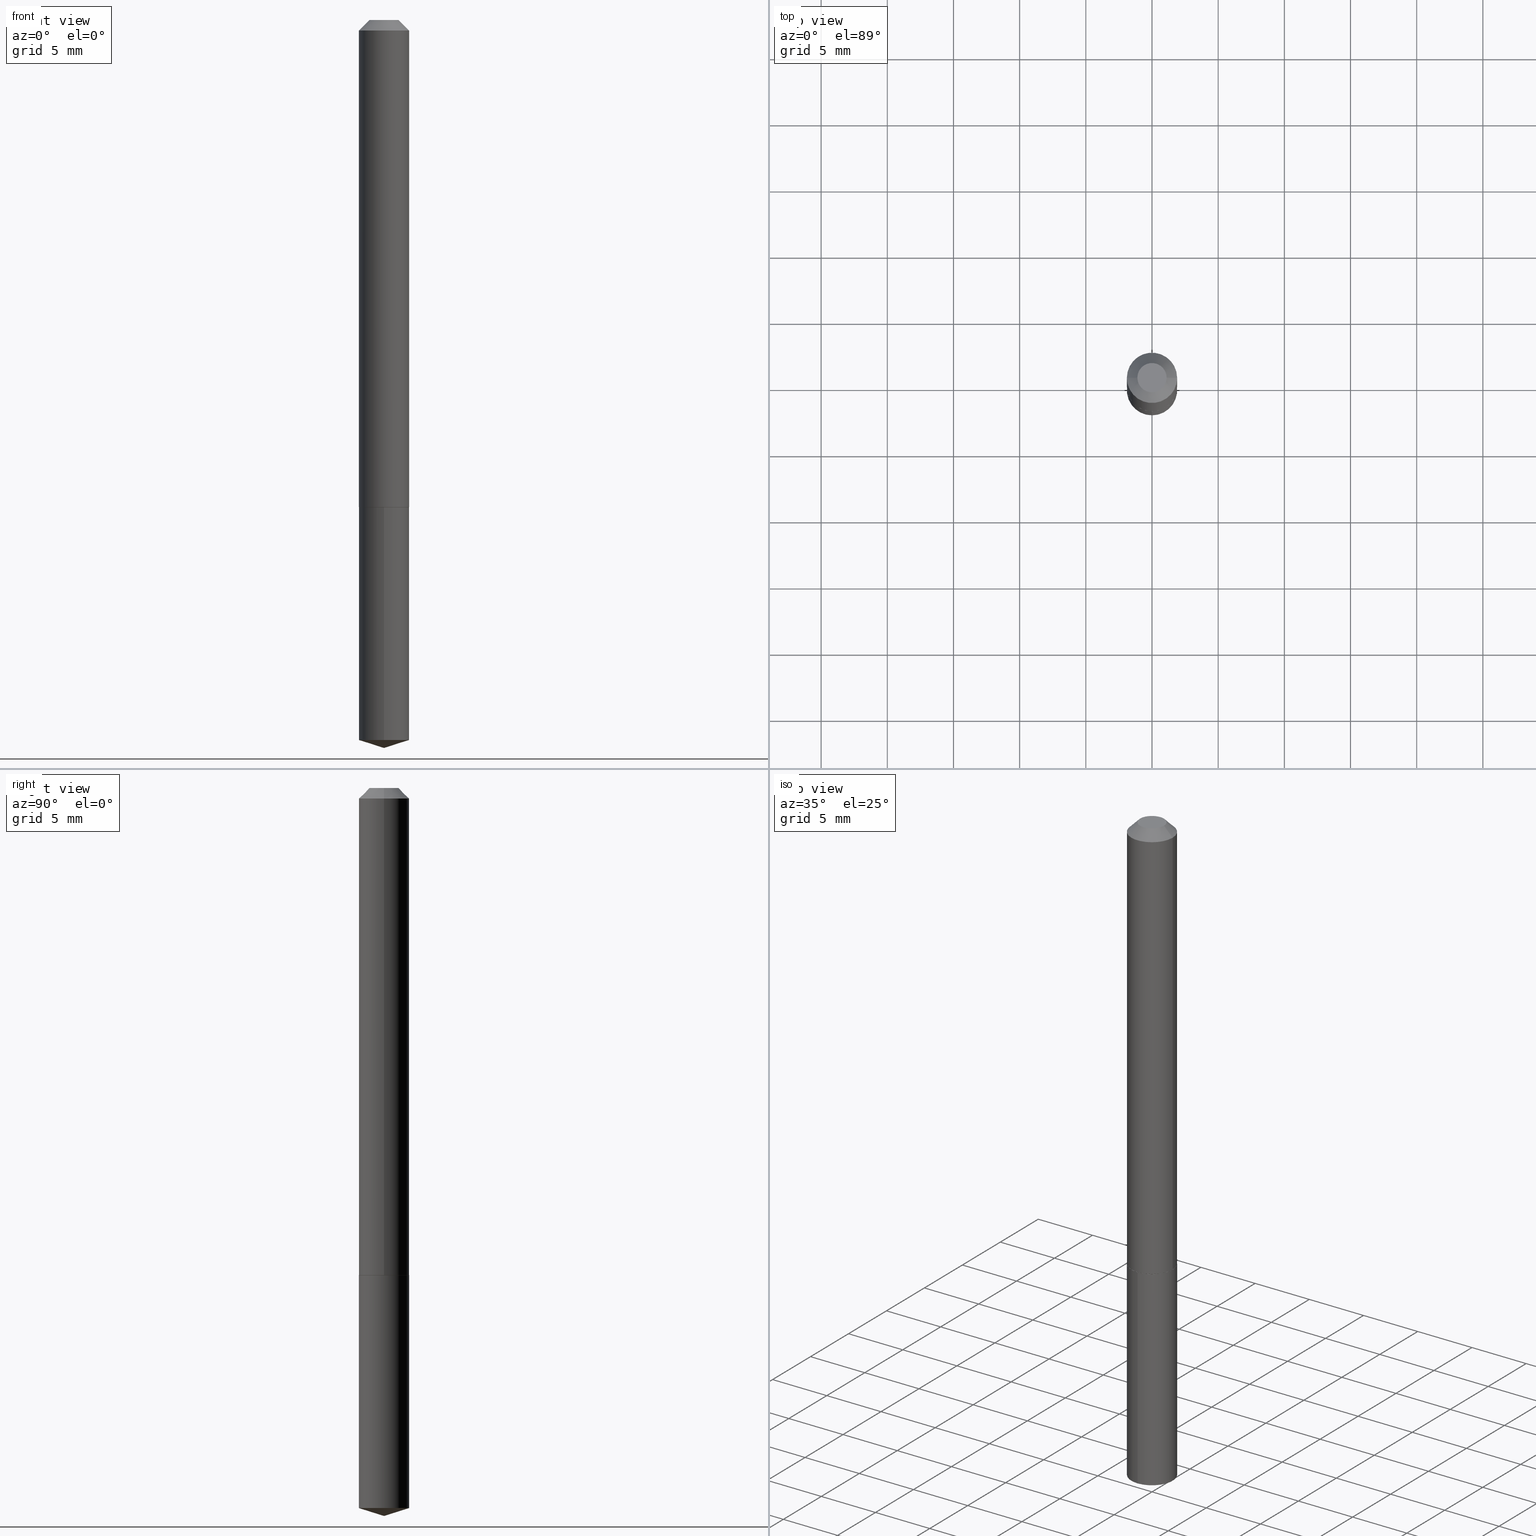
[diagram: canonical four-view strip — front | top / right | iso, engineering-drawing reading convention]
A machine part, canonical four-view strip (front | top / right | iso — engineering-drawing reading convention). The complete STEP part file that produces these views, byte-faithful:
ISO-10303-21;
HEADER;
FILE_DESCRIPTION (( 'STEP AP203' ),
    '1' );
FILE_NAME ('68686.STEP',
    '2024-04-23T13:36:39',
    ( '' ),
    ( '' ),
    'SwSTEP 2.0',
    'SolidWorks 2023',
    '' );
FILE_SCHEMA (( 'CONFIG_CONTROL_DESIGN' ));
ENDSEC;

DATA;
#1 = CIRCLE ( 'NONE', #275, 0.04355000000000000537 ) ;
#2 = CONICAL_SURFACE ( 'NONE', #114, 124.8659371009129160, 1.265363707695886797 ) ;
#3 = DIRECTION ( 'NONE',  ( -2.445414835624090141E-29, 3.491558627758377320E-15, 1.000000000000000000 ) ) ;
#4 = APPROVAL ( #79, 'UNSPECIFIED' ) ;
#5 = LENGTH_MEASURE_WITH_UNIT ( LENGTH_MEASURE( 0.02539999999999999897 ), #279 );
#6 = EDGE_CURVE ( 'NONE', #103, #8, #1, .T. ) ;
#7 = DIRECTION ( 'NONE',  ( 1.000000000000000000, -6.982962677686265922E-15, 4.876178871365119534E-29 ) ) ;
#8 = VERTEX_POINT ( 'NONE', #19 ) ;
#9 = CARTESIAN_POINT ( 'NONE',  ( 3.543239753281644463E-29, -5.058807311849834990E-15, -1.448900000000000299 ) ) ;
#10 = ORIENTED_EDGE ( 'NONE', *, *, #261, .T. ) ;
#11 = DATE_AND_TIME ( #378, #185 ) ;
#12 = CARTESIAN_POINT ( 'NONE',  ( 5.237705965075076905E-29, -7.478162929982624037E-15, -2.141815650591851750 ) ) ;
#13 = MECHANICAL_CONTEXT ( 'NONE', #85, 'mechanical' ) ;
#14 = ORIENTED_EDGE ( 'NONE', *, *, #48, .T. ) ;
#15 = EDGE_CURVE ( 'NONE', #43, #44, #188, .T. ) ;
#16 = ORIENTED_EDGE ( 'NONE', *, *, #22, .T. ) ;
#17 = DATE_TIME_ROLE ( 'creation_date' ) ;
#18 = PLANE ( 'NONE',  #357 ) ;
#19 = CARTESIAN_POINT ( 'NONE',  ( -0.04355000000000000537, 3.586624205326603821E-16, 2.388061258314161351E-19 ) ) ;
#20 = ORIENTED_EDGE ( 'NONE', *, *, #140, .F. ) ;
#21 = DIRECTION ( 'NONE',  ( -2.445468806185136597E-29, 3.491481338843145583E-15, 1.000000000000000000 ) ) ;
#22 = EDGE_CURVE ( 'NONE', #201, #25, #100, .T. ) ;
#23 = LINE ( 'NONE', #116, #184 ) ;
#24 = VECTOR ( 'NONE', #322, 39.37007874015748143 ) ;
#25 = VERTEX_POINT ( 'NONE', #49 ) ;
#26 = ORIENTED_EDGE ( 'NONE', *, *, #285, .F. ) ;
#27 = CARTESIAN_POINT ( 'NONE',  ( -9.098079514786339404E-28, 1.299024290320848208E-13, 37.20467874015748322 ) ) ;
#28 = CARTESIAN_POINT ( 'NONE',  ( -5.223256082908801440E-16, -0.07480000000000745775, -2.141815650591851750 ) ) ;
#29 = APPROVAL_PERSON_ORGANIZATION ( #232, #236, #76 ) ;
#30 = EDGE_LOOP ( 'NONE', ( #173, #70, #105 ) ) ;
#31 = DIRECTION ( 'NONE',  ( 6.776566513254246305E-15, 0.9537169507482272657, 0.3007057995042718423 ) ) ;
#32 = ADVANCED_FACE ( 'NONE', ( #170 ), #139, .F. ) ;
#33 = AXIS2_PLACEMENT_3D ( 'NONE', #257, #377, #355 ) ;
#34 = CONICAL_SURFACE ( 'NONE', #389, 124.8659371009129160, 1.265363707695886797 ) ;
#35 = DIRECTION ( 'NONE',  ( 1.000000000000000000, -6.982962677686261189E-15, 0.000000000000000000 ) ) ;
#36 = PRODUCT ( '68686', '68686', '', ( #13 ) ) ;
#37 = ORIENTED_EDGE ( 'NONE', *, *, #6, .F. ) ;
#38 = FACE_OUTER_BOUND ( 'NONE', #281, .T. ) ;
#39 = VERTEX_POINT ( 'NONE', #176 ) ;
#40 = CARTESIAN_POINT ( 'NONE',  ( 3.543239753281644463E-29, -5.058807311849834990E-15, -1.448900000000000299 ) ) ;
#41 = CLOSED_SHELL ( 'NONE', ( #122, #246, #180, #305, #296 ) ) ;
#42 = CIRCLE ( 'NONE', #108, 0.07430000000000049065 ) ;
#43 = VERTEX_POINT ( 'NONE', #28 ) ;
#44 = VERTEX_POINT ( 'NONE', #265 ) ;
#45 = PERSON_AND_ORGANIZATION ( #207, #299 ) ;
#46 = ORIENTED_EDGE ( 'NONE', *, *, #327, .T. ) ;
#47 = COORDINATED_UNIVERSAL_TIME_OFFSET ( 5, 0, .BEHIND. ) ;
#48 = EDGE_CURVE ( 'NONE', #101, #201, #266, .T. ) ;
#49 = CARTESIAN_POINT ( 'NONE',  ( -0.07480000000000000537, -2.051599215161074541E-15, -0.03125000000000020123 ) ) ;
#50 = DATE_AND_TIME ( #71, #74 ) ;
#51 = AXIS2_PLACEMENT_3D ( 'NONE', #87, #237, #211 ) ;
#52 = ORIENTED_EDGE ( 'NONE', *, *, #384, .T. ) ;
#53 = ORIENTED_EDGE ( 'NONE', *, *, #240, .F. ) ;
#54 = PERSON_AND_ORGANIZATION_ROLE ( 'creator' ) ;
#55 = DIRECTION ( 'NONE',  ( -6.982962677686265922E-15, -1.000000000000000000, 3.652203200085913934E-15 ) ) ;
#56 = DIRECTION ( 'NONE',  ( -2.445468806185136597E-29, 3.491481338843145583E-15, 1.000000000000000000 ) ) ;
#57 = DIRECTION ( 'NONE',  ( -6.982962677686265922E-15, -1.000000000000000000, 3.652203200085913934E-15 ) ) ;
#58 =( GEOMETRIC_REPRESENTATION_CONTEXT ( 3 ) GLOBAL_UNCERTAINTY_ASSIGNED_CONTEXT ( ( #335 ) ) GLOBAL_UNIT_ASSIGNED_CONTEXT ( ( #130, #369, #158 ) ) REPRESENTATION_CONTEXT ( 'NONE', 'WORKASPACE' ) );
#59 = DIRECTION ( 'NONE',  ( 1.000000000000000000, -6.982962677686266711E-15, 0.000000000000000000 ) ) ;
#60 = EDGE_CURVE ( 'NONE', #251, #375, #23, .T. ) ;
#61 = DIRECTION ( 'NONE',  ( -2.445414835624090421E-29, 3.491558627758377320E-15, 1.000000000000000000 ) ) ;
#62 = AXIS2_PLACEMENT_3D ( 'NONE', #84, #61, #55 ) ;
#63 = CARTESIAN_POINT ( 'NONE',  ( 0.07480000000000000537, -6.314344001297818025E-16, -0.03125000000000020123 ) ) ;
#64 = CARTESIAN_POINT ( 'NONE',  ( 5.314859663485902787E-16, 0.07479999999999492610, -1.448900000000000521 ) ) ;
#65 = AXIS2_PLACEMENT_3D ( 'NONE', #183, #21, #206 ) ;
#66 = DIRECTION ( 'NONE',  ( -6.982962677686265922E-15, -1.000000000000000000, 3.652203200085913145E-15 ) ) ;
#67 = CARTESIAN_POINT ( 'NONE',  ( 3.543239753281644463E-29, -5.058807311849834990E-15, -1.448900000000000299 ) ) ;
#68 = ORIENTED_EDGE ( 'NONE', *, *, #48, .F. ) ;
#69 = DIRECTION ( 'NONE',  ( 0.000000000000000000, 0.000000000000000000, 1.000000000000000000 ) ) ;
#70 = ORIENTED_EDGE ( 'NONE', *, *, #334, .T. ) ;
#71 = CALENDAR_DATE ( 2024, 23, 4 ) ;
#72 = AXIS2_PLACEMENT_3D ( 'NONE', #96, #282, #190 ) ;
#73 = CIRCLE ( 'NONE', #247, 0.07480000000000000537 ) ;
#74 = LOCAL_TIME ( 9, 36, 39.00000000000000000, #199 ) ;
#75 = EDGE_LOOP ( 'NONE', ( #197, #52, #311, #372 ) ) ;
#76 = APPROVAL_ROLE ( '' ) ;
#77 = ADVANCED_BREP_SHAPE_REPRESENTATION ( '68686', ( #387, #118, #203 ), #58 ) ;
#78 = ORIENTED_EDGE ( 'NONE', *, *, #318, .F. ) ;
#79 = APPROVAL_STATUS ( 'not_yet_approved' ) ;
#80 = CC_DESIGN_PERSON_AND_ORGANIZATION_ASSIGNMENT ( #45, #230, ( #154 ) ) ;
#81 = ORIENTED_EDGE ( 'NONE', *, *, #93, .F. ) ;
#82 = PERSON_AND_ORGANIZATION ( #207, #299 ) ;
#83 = VECTOR ( 'NONE', #155, 39.37007874015748143 ) ;
#84 = CARTESIAN_POINT ( 'NONE',  ( 3.543239753281644463E-29, -5.058807311849834990E-15, -1.448900000000000299 ) ) ;
#85 = APPLICATION_CONTEXT ( 'configuration controlled 3d designs of mechanical parts and assemblies' ) ;
#86 = DIRECTION ( 'NONE',  ( -1.000000000000000000, 6.982962677686266711E-15, 0.000000000000000000 ) ) ;
#87 = CARTESIAN_POINT ( 'NONE',  ( 7.642090019328601786E-31, -1.091087918388490144E-16, -0.03125000000000020123 ) ) ;
#88 = AXIS2_PLACEMENT_3D ( 'NONE', #332, #129, #35 ) ;
#89 = CARTESIAN_POINT ( 'NONE',  ( 7.642090019328601786E-31, -1.091087918388490144E-16, -0.03125000000000020123 ) ) ;
#90 = DIRECTION ( 'NONE',  ( 6.982962677686265922E-15, 1.000000000000000000, -3.491558627758377320E-15 ) ) ;
#91 = DIRECTION ( 'NONE',  ( 0.7071067811864026886, -2.468850131080739687E-15, 0.7071067811866923458 ) ) ;
#92 = CC_DESIGN_PERSON_AND_ORGANIZATION_ASSIGNMENT ( #107, #290, ( #154 ) ) ;
#93 = EDGE_CURVE ( 'NONE', #375, #201, #304, .T. ) ;
#94 = CONICAL_SURFACE ( 'NONE', #72, 0.07480000000000018578, 0.7853981633972434429 ) ;
#95 = CYLINDRICAL_SURFACE ( 'NONE', #383, 0.07480000000000010252 ) ;
#96 = CARTESIAN_POINT ( 'NONE',  ( 3.542017018878552782E-29, -5.057061571180413486E-15, -1.448400000000000354 ) ) ;
#97 = AXIS2_PLACEMENT_3D ( 'NONE', #386, #56, #380 ) ;
#98 = CARTESIAN_POINT ( 'NONE',  ( 0.000000000000000000, 0.000000000000000000, 0.000000000000000000 ) ) ;
#99 = CC_DESIGN_PERSON_AND_ORGANIZATION_ASSIGNMENT ( #349, #381, ( #196 ) ) ;
#100 = LINE ( 'NONE', #109, #209 ) ;
#101 = VERTEX_POINT ( 'NONE', #178 ) ;
#102 = DESIGN_CONTEXT ( 'detailed design', #272, 'design' ) ;
#103 = VERTEX_POINT ( 'NONE', #147 ) ;
#104 = DIRECTION ( 'NONE',  ( 1.000000000000000000, -6.982962677686265922E-15, 4.876176775795935232E-29 ) ) ;
#105 = ORIENTED_EDGE ( 'NONE', *, *, #15, .F. ) ;
#106 = EDGE_CURVE ( 'NONE', #345, #43, #293, .T. ) ;
#107 = PERSON_AND_ORGANIZATION ( #207, #299 ) ;
#108 = AXIS2_PLACEMENT_3D ( 'NONE', #9, #160, #134 ) ;
#109 = CARTESIAN_POINT ( 'NONE',  ( -0.07480000000000010252, 5.314859663485556675E-16, -3.679363447510674285E-30 ) ) ;
#110 = PERSON_AND_ORGANIZATION_ROLE ( 'design_owner' ) ;
#111 = ORIENTED_EDGE ( 'NONE', *, *, #285, .T. ) ;
#112 = APPROVAL_DATE_TIME ( #11, #330 ) ;
#113 = CARTESIAN_POINT ( 'NONE',  ( 3.543239753281644463E-29, -5.058807311849834990E-15, -1.448900000000000299 ) ) ;
#114 = AXIS2_PLACEMENT_3D ( 'NONE', #27, #149, #268 ) ;
#115 = CC_DESIGN_SECURITY_CLASSIFICATION ( #196, ( #154 ) ) ;
#116 = CARTESIAN_POINT ( 'NONE',  ( 0.07480000000000018578, -5.579387179471347865E-15, -1.448400000000000354 ) ) ;
#117 = DIRECTION ( 'NONE',  ( -0.7071067811864026886, 7.493145998869830357E-15, 0.7071067811866923458 ) ) ;
#118 = MANIFOLD_SOLID_BREP ( 'Body-Move/Copy2[2]', #179 ) ;
#119 = DIMENSIONAL_EXPONENTS ( 1.000000000000000000, 0.000000000000000000, 0.000000000000000000, 0.000000000000000000, 0.000000000000000000, 0.000000000000000000, 0.000000000000000000 ) ;
#120 = CARTESIAN_POINT ( 'NONE',  ( 0.07480000000000000537, -6.222740420721597243E-16, -0.03125000000000020123 ) ) ;
#121 = FACE_OUTER_BOUND ( 'NONE', #325, .T. ) ;
#122 = ADVANCED_FACE ( 'NONE', ( #146 ), #262, .T. ) ;
#123 = CIRCLE ( 'NONE', #264, 0.07479999999999999150 ) ;
#124 = LOCAL_TIME ( 9, 36, 39.00000000000000000, #312 ) ;
#125 = PLANE ( 'NONE',  #294 ) ;
#126 = ORIENTED_EDGE ( 'NONE', *, *, #390, .T. ) ;
#127 = CARTESIAN_POINT ( 'NONE',  ( -0.07480000000000000537, 4.132168164520837984E-16, -0.03125000000000020123 ) ) ;
#128 = EDGE_CURVE ( 'NONE', #103, #337, #235, .T. ) ;
#129 = DIRECTION ( 'NONE',  ( -2.445468806185136597E-29, 3.491481338843145583E-15, 1.000000000000000000 ) ) ;
#130 =( CONVERSION_BASED_UNIT ( 'INCH', #5 ) LENGTH_UNIT ( ) NAMED_UNIT ( #119 ) );
#131 = APPROVAL_PERSON_ORGANIZATION ( #171, #330, #137 ) ;
#132 = CYLINDRICAL_SURFACE ( 'NONE', #309, 0.07480000000000010252 ) ;
#133 = EDGE_LOOP ( 'NONE', ( #200, #165, #111, #307 ) ) ;
#134 = DIRECTION ( 'NONE',  ( 1.000000000000000000, -6.982962677686261189E-15, 0.000000000000000000 ) ) ;
#135 = ADVANCED_FACE ( 'NONE', ( #292 ), #150, .T. ) ;
#136 = ORIENTED_EDGE ( 'NONE', *, *, #242, .F. ) ;
#137 = APPROVAL_ROLE ( '' ) ;
#138 = VECTOR ( 'NONE', #3, 39.37007874015748143 ) ;
#139 = PLANE ( 'NONE',  #33 ) ;
#140 = EDGE_CURVE ( 'NONE', #25, #337, #172, .T. ) ;
#141 = DATE_AND_TIME ( #256, #358 ) ;
#142 = DIRECTION ( 'NONE',  ( -2.445414835624090421E-29, 3.491558627758377320E-15, 1.000000000000000000 ) ) ;
#143 = ORIENTED_EDGE ( 'NONE', *, *, #390, .F. ) ;
#144 = DIRECTION ( 'NONE',  ( -2.445414835624090421E-29, 3.491558627758377320E-15, 1.000000000000000000 ) ) ;
#145 = AXIS2_PLACEMENT_3D ( 'NONE', #210, #328, #59 ) ;
#146 = FACE_OUTER_BOUND ( 'NONE', #75, .T. ) ;
#147 = CARTESIAN_POINT ( 'NONE',  ( 0.04355000000000000537, -4.605243649375549933E-16, 2.388061258364063159E-19 ) ) ;
#148 = DIRECTION ( 'NONE',  ( 2.445414835624090141E-29, -3.491558627758377320E-15, -1.000000000000000000 ) ) ;
#149 = DIRECTION ( 'NONE',  ( -2.445414835624090421E-29, 3.491558627758377320E-15, 1.000000000000000000 ) ) ;
#150 = CONICAL_SURFACE ( 'NONE', #51, 0.07480000000000000537, 0.7853981633974452814 ) ;
#151 = DIRECTION ( 'NONE',  ( -2.445468806185136597E-29, 3.491481338843145583E-15, 1.000000000000000000 ) ) ;
#152 = LINE ( 'NONE', #216, #329 ) ;
#153 = CONICAL_SURFACE ( 'NONE', #202, 0.07480000000000000537, 0.7853981633974452814 ) ;
#154 = PRODUCT_DEFINITION_FORMATION_WITH_SPECIFIED_SOURCE ( 'ANY', '', #36, .NOT_KNOWN. ) ;
#155 = DIRECTION ( 'NONE',  ( -2.445414835624090141E-29, 3.491558627758377320E-15, 1.000000000000000000 ) ) ;
#156 = LINE ( 'NONE', #127, #374 ) ;
#157 = EDGE_CURVE ( 'NONE', #201, #375, #320, .T. ) ;
#158 =( NAMED_UNIT ( * ) SI_UNIT ( $, .STERADIAN. ) SOLID_ANGLE_UNIT ( ) );
#159 = CC_DESIGN_PERSON_AND_ORGANIZATION_ASSIGNMENT ( #169, #54, ( #302 ) ) ;
#160 = DIRECTION ( 'NONE',  ( -2.445468806185136597E-29, 3.491481338843145583E-15, 1.000000000000000000 ) ) ;
#161 = ORIENTED_EDGE ( 'NONE', *, *, #60, .T. ) ;
#162 = AXIS2_PLACEMENT_3D ( 'NONE', #40, #163, #187 ) ;
#163 = DIRECTION ( 'NONE',  ( -2.445414835624090421E-29, 3.491558627758377320E-15, 1.000000000000000000 ) ) ;
#164 = CC_DESIGN_APPROVAL ( #330, ( #302 ) ) ;
#165 = ORIENTED_EDGE ( 'NONE', *, *, #261, .F. ) ;
#166 = ORIENTED_EDGE ( 'NONE', *, *, #157, .F. ) ;
#167 = SHAPE_DEFINITION_REPRESENTATION ( #224, #77 ) ;
#168 = ORIENTED_EDGE ( 'NONE', *, *, #60, .F. ) ;
#169 = PERSON_AND_ORGANIZATION ( #207, #299 ) ;
#170 = FACE_OUTER_BOUND ( 'NONE', #316, .T. ) ;
#171 = PERSON_AND_ORGANIZATION ( #207, #299 ) ;
#172 = CIRCLE ( 'NONE', #65, 0.07480000000000000537 ) ;
#173 = ORIENTED_EDGE ( 'NONE', *, *, #106, .F. ) ;
#174 = ORIENTED_EDGE ( 'NONE', *, *, #240, .T. ) ;
#175 = APPROVAL_ROLE ( '' ) ;
#176 = CARTESIAN_POINT ( 'NONE',  ( -5.223256082908973017E-16, -0.07480000000000507077, -1.448899999999999855 ) ) ;
#177 = DATE_TIME_ROLE ( 'classification_date' ) ;
#178 = CARTESIAN_POINT ( 'NONE',  ( -0.07430000000000049065, -4.528224832005967541E-15, -1.448900000000000299 ) ) ;
#179 = CLOSED_SHELL ( 'NONE', ( #229, #269, #379, #32, #255, #361, #135, #300 ) ) ;
#180 = ADVANCED_FACE ( 'NONE', ( #350 ), #34, .T. ) ;
#181 = DIRECTION ( 'NONE',  ( 1.000000000000000000, -6.982962677686271444E-15, 0.000000000000000000 ) ) ;
#182 = FACE_OUTER_BOUND ( 'NONE', #30, .T. ) ;
#183 = CARTESIAN_POINT ( 'NONE',  ( 7.642090019328601786E-31, -1.091087918388490144E-16, -0.03125000000000020123 ) ) ;
#184 = VECTOR ( 'NONE', #91, 39.37007874015748143 ) ;
#185 = LOCAL_TIME ( 9, 36, 39.00000000000000000, #317 ) ;
#186 = CARTESIAN_POINT ( 'NONE',  ( 5.295301285060405433E-29, -7.560621052547990734E-15, -2.165399999999999991 ) ) ;
#187 = DIRECTION ( 'NONE',  ( -6.982962677686265922E-15, -1.000000000000000000, 3.652203200085913934E-15 ) ) ;
#188 = CIRCLE ( 'NONE', #373, 0.07479999999999999150 ) ;
#189 = LINE ( 'NONE', #64, #138 ) ;
#190 = DIRECTION ( 'NONE',  ( 1.000000000000000000, -6.982962677686271444E-15, 0.000000000000000000 ) ) ;
#191 = FACE_OUTER_BOUND ( 'NONE', #225, .T. ) ;
#192 = ORIENTED_EDGE ( 'NONE', *, *, #384, .F. ) ;
#193 = DIRECTION ( 'NONE',  ( -1.000000000000000000, 6.982962677686265922E-15, -4.876176775795935793E-29 ) ) ;
#194 = CARTESIAN_POINT ( 'NONE',  ( -5.839929314523175409E-48, 8.337871319499082469E-34, 2.388061258337334140E-19 ) ) ;
#195 = VECTOR ( 'NONE', #204, 39.37007874015748854 ) ;
#196 = SECURITY_CLASSIFICATION ( '', '', #287 ) ;
#197 = ORIENTED_EDGE ( 'NONE', *, *, #15, .T. ) ;
#198 = EDGE_LOOP ( 'NONE', ( #37, #348, #267, #26 ) ) ;
#199 = COORDINATED_UNIVERSAL_TIME_OFFSET ( 5, 0, .BEHIND. ) ;
#200 = ORIENTED_EDGE ( 'NONE', *, *, #128, .F. ) ;
#201 = VERTEX_POINT ( 'NONE', #297 ) ;
#202 = AXIS2_PLACEMENT_3D ( 'NONE', #89, #231, #86 ) ;
#203 = AXIS2_PLACEMENT_3D ( 'NONE', #220, #69, #205 ) ;
#204 = DIRECTION ( 'NONE',  ( -6.659769872151621044E-15, -0.9537169507482251563, 0.3007057995042784482 ) ) ;
#205 = DIRECTION ( 'NONE',  ( 1.000000000000000000, 0.000000000000000000, 0.000000000000000000 ) ) ;
#206 = DIRECTION ( 'NONE',  ( 1.000000000000000000, -6.982962677686266711E-15, 0.000000000000000000 ) ) ;
#207 = PERSON ( 'UNSPECIFIED', 'UNSPECIFIED', 'UNSPECIFIED', ('UNSPECIFIED'), ('UNSPECIFIED'), ('UNSPECIFIED') ) ;
#208 = FACE_OUTER_BOUND ( 'NONE', #198, .T. ) ;
#209 = VECTOR ( 'NONE', #219, 39.37007874015748143 ) ;
#210 = CARTESIAN_POINT ( 'NONE',  ( 7.642090019328601786E-31, -1.091087918388490144E-16, -0.03125000000000020123 ) ) ;
#211 = DIRECTION ( 'NONE',  ( -1.000000000000000000, 6.982962677686266711E-15, 0.000000000000000000 ) ) ;
#212 = CARTESIAN_POINT ( 'NONE',  ( 0.07480000000000010252, -5.223256082909333921E-16, 3.647380228295364368E-30 ) ) ;
#213 = CIRCLE ( 'NONE', #88, 0.07430000000000049065 ) ;
#214 = CARTESIAN_POINT ( 'NONE',  ( 0.07480000000000018578, -5.579387179471347865E-15, -1.448400000000000354 ) ) ;
#215 = FACE_OUTER_BOUND ( 'NONE', #319, .T. ) ;
#216 = CARTESIAN_POINT ( 'NONE',  ( 5.295459052359565320E-29, -7.560397084729431831E-15, -2.165399999999999991 ) ) ;
#217 = DIRECTION ( 'NONE',  ( -2.445468806185136597E-29, 3.491481338843145583E-15, 1.000000000000000000 ) ) ;
#218 = EDGE_CURVE ( 'NONE', #368, #39, #233, .T. ) ;
#219 = DIRECTION ( 'NONE',  ( -2.445468806185136877E-29, 3.491481338843145188E-15, 1.000000000000000000 ) ) ;
#220 = CARTESIAN_POINT ( 'NONE',  ( 0.000000000000000000, 0.000000000000000000, 0.000000000000000000 ) ) ;
#221 = CARTESIAN_POINT ( 'NONE',  ( 0.000000000000000000, 0.000000000000000000, 0.000000000000000000 ) ) ;
#222 = ORIENTED_EDGE ( 'NONE', *, *, #334, .F. ) ;
#223 = EDGE_LOOP ( 'NONE', ( #222, #284, #53 ) ) ;
#224 = PRODUCT_DEFINITION_SHAPE ( 'NONE', 'NONE',  #302 ) ;
#225 = EDGE_LOOP ( 'NONE', ( #286, #16, #136, #343 ) ) ;
#226 = APPROVAL_STATUS ( 'not_yet_approved' ) ;
#227 = ORIENTED_EDGE ( 'NONE', *, *, #218, .T. ) ;
#228 = APPROVAL_DATE_TIME ( #141, #236 ) ;
#229 = ADVANCED_FACE ( 'NONE', ( #208 ), #153, .T. ) ;
#230 = PERSON_AND_ORGANIZATION_ROLE ( 'design_supplier' ) ;
#231 = DIRECTION ( 'NONE',  ( 2.445468806185136597E-29, -3.491481338843145583E-15, -1.000000000000000000 ) ) ;
#232 = PERSON_AND_ORGANIZATION ( #207, #299 ) ;
#233 = CIRCLE ( 'NONE', #238, 0.07480000000000000537 ) ;
#234 = DIRECTION ( 'NONE',  ( -6.982962677686265922E-15, -1.000000000000000000, 3.652203200085913145E-15 ) ) ;
#235 = LINE ( 'NONE', #120, #24 ) ;
#236 = APPROVAL ( #226, 'UNSPECIFIED' ) ;
#237 = DIRECTION ( 'NONE',  ( 2.445468806185136597E-29, -3.491481338843145583E-15, -1.000000000000000000 ) ) ;
#238 = AXIS2_PLACEMENT_3D ( 'NONE', #113, #382, #234 ) ;
#239 = CARTESIAN_POINT ( 'NONE',  ( 3.542017018878552782E-29, -5.057061571180413486E-15, -1.448400000000000354 ) ) ;
#240 = EDGE_CURVE ( 'NONE', #44, #43, #123, .T. ) ;
#241 = AXIS2_PLACEMENT_3D ( 'NONE', #363, #217, #7 ) ;
#242 = EDGE_CURVE ( 'NONE', #337, #25, #289, .T. ) ;
#243 = CC_DESIGN_APPROVAL ( #236, ( #154 ) ) ;
#244 = CARTESIAN_POINT ( 'NONE',  ( -2.919964657261587705E-48, 4.168935659749541235E-34, 1.194030629168667070E-19 ) ) ;
#245 = CARTESIAN_POINT ( 'NONE',  ( -5.223256082908972031E-16, -0.07480000000000505689, -1.448899999999999855 ) ) ;
#246 = ADVANCED_FACE ( 'NONE', ( #182 ), #2, .T. ) ;
#247 = AXIS2_PLACEMENT_3D ( 'NONE', #67, #360, #66 ) ;
#248 = LOCAL_TIME ( 9, 36, 39.00000000000000000, #47 ) ;
#249 = ORIENTED_EDGE ( 'NONE', *, *, #274, .T. ) ;
#250 = DIRECTION ( 'NONE',  ( 1.000000000000000000, -6.982962677686271444E-15, 0.000000000000000000 ) ) ;
#251 = VERTEX_POINT ( 'NONE', #388 ) ;
#252 = ORIENTED_EDGE ( 'NONE', *, *, #318, .T. ) ;
#253 = APPLICATION_PROTOCOL_DEFINITION ( 'international standard', 'config_control_design', 1994, #272 ) ;
#254 = DIRECTION ( 'NONE',  ( -6.982962677686265922E-15, -1.000000000000000000, 3.652203200085913934E-15 ) ) ;
#255 = ADVANCED_FACE ( 'NONE', ( #121 ), #276, .T. ) ;
#256 = CALENDAR_DATE ( 2024, 23, 4 ) ;
#257 = CARTESIAN_POINT ( 'NONE',  ( 3.543239753281644463E-29, -5.058807311849834990E-15, -1.448900000000000299 ) ) ;
#258 = CALENDAR_DATE ( 2024, 23, 4 ) ;
#259 = ORIENTED_EDGE ( 'NONE', *, *, #6, .T. ) ;
#260 = FACE_OUTER_BOUND ( 'NONE', #313, .T. ) ;
#261 = EDGE_CURVE ( 'NONE', #8, #103, #270, .T. ) ;
#262 = CYLINDRICAL_SURFACE ( 'NONE', #62, 0.07479999999999999150 ) ;
#263 = APPROVAL_DATE_TIME ( #50, #4 ) ;
#264 = AXIS2_PLACEMENT_3D ( 'NONE', #324, #326, #57 ) ;
#265 = CARTESIAN_POINT ( 'NONE',  ( 5.314859663486070420E-16, 0.07479999999999249749, -2.141815650591852194 ) ) ;
#266 = LINE ( 'NONE', #385, #342 ) ;
#267 = ORIENTED_EDGE ( 'NONE', *, *, #242, .T. ) ;
#268 = DIRECTION ( 'NONE',  ( -6.982962677686268288E-15, -1.000000000000000000, 3.500519750498764780E-15 ) ) ;
#269 = ADVANCED_FACE ( 'NONE', ( #191 ), #132, .T. ) ;
#270 = CIRCLE ( 'NONE', #241, 0.04355000000000000537 ) ;
#271 = CC_DESIGN_DATE_AND_TIME_ASSIGNMENT ( #353, #177, ( #196 ) ) ;
#272 = APPLICATION_CONTEXT ( 'configuration controlled 3d designs of mechanical parts and assemblies' ) ;
#273 = CARTESIAN_POINT ( 'NONE',  ( 3.543239753281644463E-29, -5.058807311849834990E-15, -1.448900000000000299 ) ) ;
#274 = EDGE_CURVE ( 'NONE', #375, #337, #341, .T. ) ;
#275 = AXIS2_PLACEMENT_3D ( 'NONE', #194, #310, #283 ) ;
#276 = CONICAL_SURFACE ( 'NONE', #351, 0.07480000000000018578, 0.7853981633972434429 ) ;
#277 = DIRECTION ( 'NONE',  ( 1.000000000000000000, -6.982962677686265922E-15, 4.876176775795935232E-29 ) ) ;
#278 = APPLICATION_PROTOCOL_DEFINITION ( 'international standard', 'config_control_design', 1994, #85 ) ;
#279 =( LENGTH_UNIT ( ) NAMED_UNIT ( * ) SI_UNIT ( $, .METRE. ) );
#280 = VECTOR ( 'NONE', #331, 39.37007874015748143 ) ;
#281 = EDGE_LOOP ( 'NONE', ( #192, #174, #291, #338 ) ) ;
#282 = DIRECTION ( 'NONE',  ( -2.445468806185136597E-29, 3.491481338843145583E-15, 1.000000000000000000 ) ) ;
#283 = DIRECTION ( 'NONE',  ( 1.000000000000000000, -6.982962677686265922E-15, 4.876178871365119534E-29 ) ) ;
#284 = ORIENTED_EDGE ( 'NONE', *, *, #106, .T. ) ;
#285 = EDGE_CURVE ( 'NONE', #8, #25, #156, .T. ) ;
#286 = ORIENTED_EDGE ( 'NONE', *, *, #93, .T. ) ;
#287 = SECURITY_CLASSIFICATION_LEVEL ( 'unclassified' ) ;
#288 = ORIENTED_EDGE ( 'NONE', *, *, #22, .F. ) ;
#289 = CIRCLE ( 'NONE', #145, 0.07480000000000000537 ) ;
#290 = PERSON_AND_ORGANIZATION_ROLE ( 'creator' ) ;
#291 = ORIENTED_EDGE ( 'NONE', *, *, #339, .T. ) ;
#292 = FACE_OUTER_BOUND ( 'NONE', #133, .T. ) ;
#293 = LINE ( 'NONE', #295, #195 ) ;
#294 = AXIS2_PLACEMENT_3D ( 'NONE', #244, #362, #193 ) ;
#295 = CARTESIAN_POINT ( 'NONE',  ( 5.295301285060405433E-29, -7.560621052547990734E-15, -2.165399999999999991 ) ) ;
#296 = ADVANCED_FACE ( 'NONE', ( #260 ), #18, .F. ) ;
#297 = CARTESIAN_POINT ( 'NONE',  ( -0.07480000000000018578, -4.525575604831857918E-15, -1.448400000000000354 ) ) ;
#298 = CARTESIAN_POINT ( 'NONE',  ( 3.542017018878552782E-29, -5.057061571180413486E-15, -1.448400000000000354 ) ) ;
#299 = ORGANIZATION ( 'UNSPECIFIED', 'UNSPECIFIED', '' ) ;
#300 = ADVANCED_FACE ( 'NONE', ( #336 ), #125, .F. ) ;
#301 = CARTESIAN_POINT ( 'NONE',  ( 5.314859663486073379E-16, 0.07479999999999493998, -1.448900000000000521 ) ) ;
#302 = PRODUCT_DEFINITION ( 'UNKNOWN', '', #154, #102 ) ;
#303 = CYLINDRICAL_SURFACE ( 'NONE', #162, 0.07479999999999999150 ) ;
#304 = CIRCLE ( 'NONE', #97, 0.07480000000000018578 ) ;
#305 = ADVANCED_FACE ( 'NONE', ( #38 ), #303, .T. ) ;
#306 = FACE_OUTER_BOUND ( 'NONE', #367, .T. ) ;
#307 = ORIENTED_EDGE ( 'NONE', *, *, #140, .T. ) ;
#308 = DIRECTION ( 'NONE',  ( -2.445468806185136597E-29, 3.491481338843145583E-15, 1.000000000000000000 ) ) ;
#309 = AXIS2_PLACEMENT_3D ( 'NONE', #221, #370, #104 ) ;
#310 = DIRECTION ( 'NONE',  ( -2.445468806185136597E-29, 3.491481338843145583E-15, 1.000000000000000000 ) ) ;
#311 = ORIENTED_EDGE ( 'NONE', *, *, #327, .F. ) ;
#312 = COORDINATED_UNIVERSAL_TIME_OFFSET ( 5, 0, .BEHIND. ) ;
#313 = EDGE_LOOP ( 'NONE', ( #46, #227 ) ) ;
#314 = COORDINATED_UNIVERSAL_TIME_OFFSET ( 5, 0, .BEHIND. ) ;
#315 = CC_DESIGN_DATE_AND_TIME_ASSIGNMENT ( #344, #17, ( #302 ) ) ;
#316 = EDGE_LOOP ( 'NONE', ( #143, #78 ) ) ;
#317 = COORDINATED_UNIVERSAL_TIME_OFFSET ( 5, 0, .BEHIND. ) ;
#318 = EDGE_CURVE ( 'NONE', #101, #251, #213, .T. ) ;
#319 = EDGE_LOOP ( 'NONE', ( #288, #321, #249, #20 ) ) ;
#320 = CIRCLE ( 'NONE', #364, 0.07480000000000018578 ) ;
#321 = ORIENTED_EDGE ( 'NONE', *, *, #157, .T. ) ;
#322 = DIRECTION ( 'NONE',  ( 0.7071067811865453523, -7.319954787623248157E-15, -0.7071067811865496822 ) ) ;
#323 = CALENDAR_DATE ( 2024, 23, 4 ) ;
#324 = CARTESIAN_POINT ( 'NONE',  ( 5.237705965075076905E-29, -7.478162929982624037E-15, -2.141815650591851750 ) ) ;
#325 = EDGE_LOOP ( 'NONE', ( #68, #252, #161, #166 ) ) ;
#326 = DIRECTION ( 'NONE',  ( -2.445414835624090421E-29, 3.491558627758377320E-15, 1.000000000000000000 ) ) ;
#327 = EDGE_CURVE ( 'NONE', #39, #368, #73, .T. ) ;
#328 = DIRECTION ( 'NONE',  ( -2.445468806185136597E-29, 3.491481338843145583E-15, 1.000000000000000000 ) ) ;
#329 = VECTOR ( 'NONE', #31, 39.37007874015748854 ) ;
#330 = APPROVAL ( #346, 'UNSPECIFIED' ) ;
#331 = DIRECTION ( 'NONE',  ( -2.445468806185136877E-29, 3.491481338843145188E-15, 1.000000000000000000 ) ) ;
#332 = CARTESIAN_POINT ( 'NONE',  ( 3.543239753281644463E-29, -5.058807311849834990E-15, -1.448900000000000299 ) ) ;
#333 = DIRECTION ( 'NONE',  ( -0.7071067811865453523, 2.468850131082234184E-15, -0.7071067811865496822 ) ) ;
#334 = EDGE_CURVE ( 'NONE', #345, #44, #152, .T. ) ;
#335 = UNCERTAINTY_MEASURE_WITH_UNIT (LENGTH_MEASURE( 1.000000000000000082E-05 ), #130, 'distance_accuracy_value', 'NONE');
#336 = FACE_OUTER_BOUND ( 'NONE', #340, .T. ) ;
#337 = VERTEX_POINT ( 'NONE', #63 ) ;
#338 = ORIENTED_EDGE ( 'NONE', *, *, #218, .F. ) ;
#339 = EDGE_CURVE ( 'NONE', #43, #39, #366, .T. ) ;
#340 = EDGE_LOOP ( 'NONE', ( #10, #259 ) ) ;
#341 = LINE ( 'NONE', #212, #280 ) ;
#342 = VECTOR ( 'NONE', #117, 39.37007874015748143 ) ;
#343 = ORIENTED_EDGE ( 'NONE', *, *, #274, .F. ) ;
#344 = DATE_AND_TIME ( #323, #124 ) ;
#345 = VERTEX_POINT ( 'NONE', #186 ) ;
#346 = APPROVAL_STATUS ( 'not_yet_approved' ) ;
#347 = CC_DESIGN_PERSON_AND_ORGANIZATION_ASSIGNMENT ( #376, #110, ( #36 ) ) ;
#348 = ORIENTED_EDGE ( 'NONE', *, *, #128, .T. ) ;
#349 = PERSON_AND_ORGANIZATION ( #207, #299 ) ;
#350 = FACE_OUTER_BOUND ( 'NONE', #223, .T. ) ;
#351 = AXIS2_PLACEMENT_3D ( 'NONE', #239, #359, #250 ) ;
#352 = CC_DESIGN_APPROVAL ( #4, ( #196 ) ) ;
#353 = DATE_AND_TIME ( #258, #248 ) ;
#354 = CARTESIAN_POINT ( 'NONE',  ( -9.098079514786339404E-28, 1.299024290320848208E-13, 37.20467874015748322 ) ) ;
#355 = DIRECTION ( 'NONE',  ( 1.000000000000000000, -6.982962677686265922E-15, 4.876176775795935793E-29 ) ) ;
#356 = DIRECTION ( 'NONE',  ( -6.982962677686268288E-15, -1.000000000000000000, 3.500519750498764780E-15 ) ) ;
#357 = AXIS2_PLACEMENT_3D ( 'NONE', #273, #148, #90 ) ;
#358 = LOCAL_TIME ( 9, 36, 39.00000000000000000, #314 ) ;
#359 = DIRECTION ( 'NONE',  ( -2.445468806185136597E-29, 3.491481338843145583E-15, 1.000000000000000000 ) ) ;
#360 = DIRECTION ( 'NONE',  ( -2.445414835624090421E-29, 3.491558627758377320E-15, 1.000000000000000000 ) ) ;
#361 = ADVANCED_FACE ( 'NONE', ( #215 ), #95, .T. ) ;
#362 = DIRECTION ( 'NONE',  ( 2.438088387897960049E-29, -3.491481338843145188E-15, -1.000000000000000000 ) ) ;
#363 = CARTESIAN_POINT ( 'NONE',  ( -5.839929314523175409E-48, 8.337871319499082469E-34, 2.388061258337334140E-19 ) ) ;
#364 = AXIS2_PLACEMENT_3D ( 'NONE', #298, #151, #181 ) ;
#365 = APPROVAL_PERSON_ORGANIZATION ( #82, #4, #175 ) ;
#366 = LINE ( 'NONE', #245, #83 ) ;
#367 = EDGE_LOOP ( 'NONE', ( #126, #14, #81, #168 ) ) ;
#368 = VERTEX_POINT ( 'NONE', #301 ) ;
#369 =( NAMED_UNIT ( * ) PLANE_ANGLE_UNIT ( ) SI_UNIT ( $, .RADIAN. ) );
#370 = DIRECTION ( 'NONE',  ( -2.445468806185136597E-29, 3.491481338843145583E-15, 1.000000000000000000 ) ) ;
#371 = PRODUCT_RELATED_PRODUCT_CATEGORY ( 'detail', '', ( #36 ) ) ;
#372 = ORIENTED_EDGE ( 'NONE', *, *, #339, .F. ) ;
#373 = AXIS2_PLACEMENT_3D ( 'NONE', #12, #142, #254 ) ;
#374 = VECTOR ( 'NONE', #333, 39.37007874015748143 ) ;
#375 = VERTEX_POINT ( 'NONE', #214 ) ;
#376 = PERSON_AND_ORGANIZATION ( #207, #299 ) ;
#377 = DIRECTION ( 'NONE',  ( -2.438088387897960049E-29, 3.491481338843145188E-15, 1.000000000000000000 ) ) ;
#378 = CALENDAR_DATE ( 2024, 23, 4 ) ;
#379 = ADVANCED_FACE ( 'NONE', ( #306 ), #94, .T. ) ;
#380 = DIRECTION ( 'NONE',  ( 1.000000000000000000, -6.982962677686271444E-15, 0.000000000000000000 ) ) ;
#381 = PERSON_AND_ORGANIZATION_ROLE ( 'classification_officer' ) ;
#382 = DIRECTION ( 'NONE',  ( -2.445414835624090421E-29, 3.491558627758377320E-15, 1.000000000000000000 ) ) ;
#383 = AXIS2_PLACEMENT_3D ( 'NONE', #98, #308, #277 ) ;
#384 = EDGE_CURVE ( 'NONE', #44, #368, #189, .T. ) ;
#385 = CARTESIAN_POINT ( 'NONE',  ( -0.07480000000000018578, -4.525575604831857918E-15, -1.448400000000000354 ) ) ;
#386 = CARTESIAN_POINT ( 'NONE',  ( 3.542017018878552782E-29, -5.057061571180413486E-15, -1.448400000000000354 ) ) ;
#387 = MANIFOLD_SOLID_BREP ( 'Body-Move/Copy2[1]', #41 ) ;
#388 = CARTESIAN_POINT ( 'NONE',  ( 0.07430000000000049065, -5.577641438801927150E-15, -1.448900000000000299 ) ) ;
#389 = AXIS2_PLACEMENT_3D ( 'NONE', #354, #144, #356 ) ;
#390 = EDGE_CURVE ( 'NONE', #251, #101, #42, .T. ) ;
ENDSEC;
END-ISO-10303-21;
